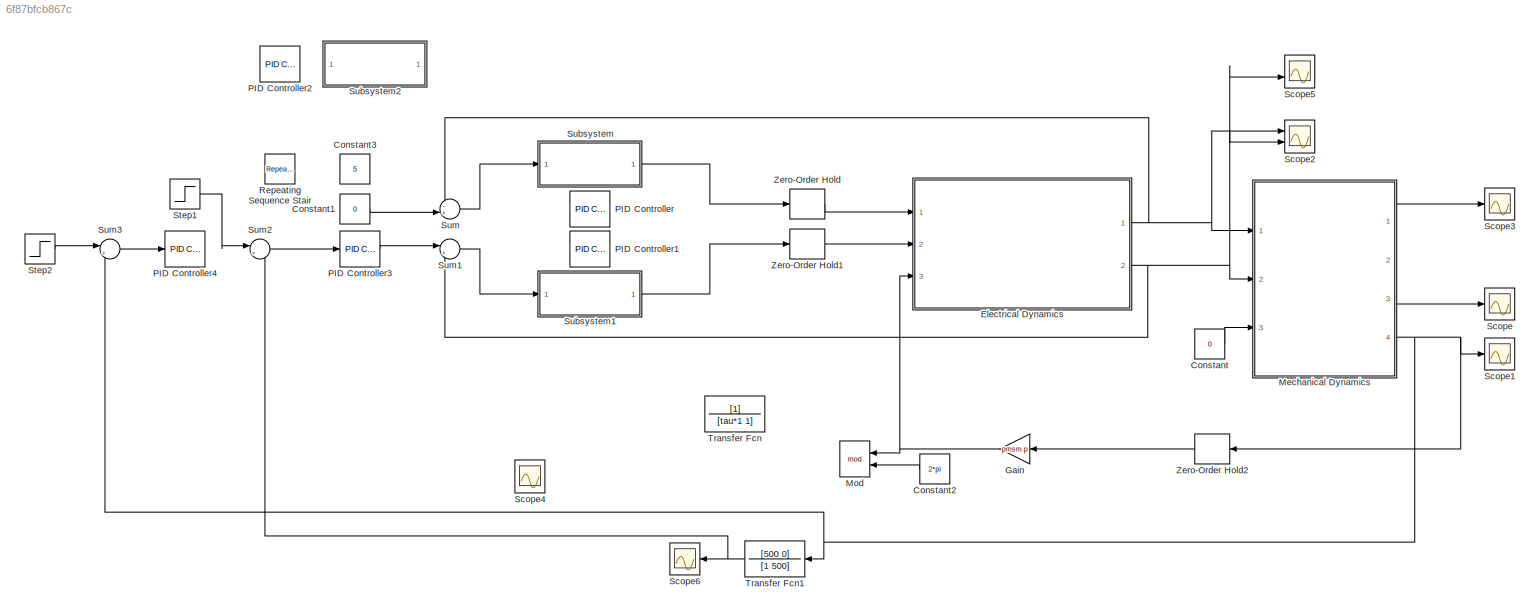
MODEL slx_6f87bfcb867c
KIND model
CONFIG AbsTol = auto
CONFIG EnableMultiTasking = off
CONFIG FixedStep = 1e-5
CONFIG MaxStep = auto
CONFIG MinStep = auto
CONFIG RelTol = 1e-3
CONFIG SampleTimeConstraint = Unconstrained
CONFIG SolverName = VariableStepAuto
CONFIG StartTime = 0.0
CONFIG StopTime = 5
BLOCK [Constant] Constant
  Value = 0
BLOCK [Constant] Constant1
  Value = 0
BLOCK [Constant] Constant2
  NameLocation = top
  Value = 2*pi
BLOCK [Constant] Constant3
  Value = 5
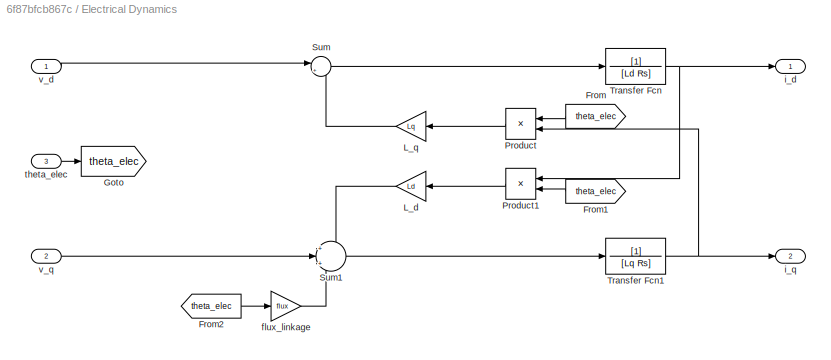
BLOCK [SubSystem] Electrical Dynamics
  Ports = [3, 2]
  RequestExecContextInheritance = off
BLOCK [From] Electrical Dynamics/From
  GotoTag = theta_elec
  NameLocation = top
BLOCK [From] Electrical Dynamics/From1
  GotoTag = theta_elec
  NameLocation = top
BLOCK [From] Electrical Dynamics/From2
  GotoTag = theta_elec
BLOCK [Goto] Electrical Dynamics/Goto
  GotoTag = theta_elec
BLOCK [Gain] Electrical Dynamics/L_d
  Gain = Ld
  NameLocation = top
BLOCK [Gain] Electrical Dynamics/L_q
  Gain = Lq
  NameLocation = top
BLOCK [Product] Electrical Dynamics/Product
  NameLocation = top
  Ports = [2, 1]
BLOCK [Product] Electrical Dynamics/Product1
  NameLocation = top
  Ports = [2, 1]
BLOCK [Sum] Electrical Dynamics/Sum
  Inputs = |+-
  Ports = [2, 1]
BLOCK [Sum] Electrical Dynamics/Sum1
  Inputs = +|+|+
  Ports = [3, 1]
BLOCK [TransferFcn] Electrical Dynamics/Transfer Fcn
  Denominator = [Ld Rs]
BLOCK [TransferFcn] Electrical Dynamics/Transfer Fcn1
  Denominator = [Lq Rs]
BLOCK [Gain] Electrical Dynamics/flux_linkage
  Gain = flux
BLOCK [Outport] Electrical Dynamics/i_d
BLOCK [Outport] Electrical Dynamics/i_q
  Port = 2
BLOCK [Inport] Electrical Dynamics/theta_elec
  Port = 3
BLOCK [Inport] Electrical Dynamics/v_d
BLOCK [Inport] Electrical Dynamics/v_q
  Port = 2
BLOCK [Gain] Gain
  Gain = pmsm.p
  NameLocation = top
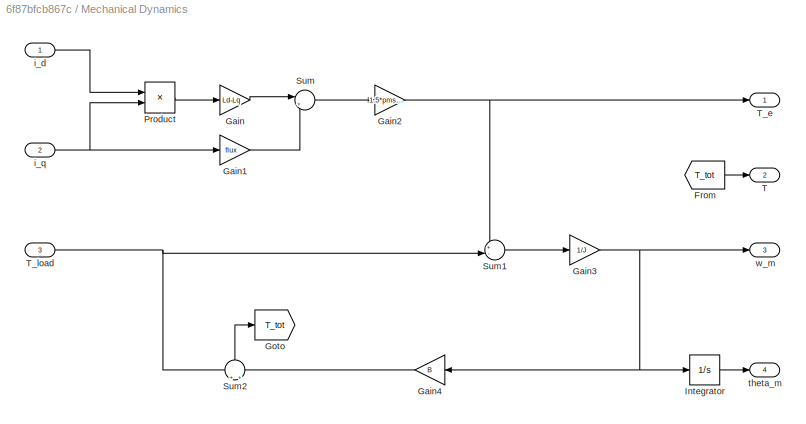
BLOCK [SubSystem] Mechanical Dynamics
  Ports = [3, 4]
  RequestExecContextInheritance = off
BLOCK [From] Mechanical Dynamics/From
  GotoTag = T_tot
BLOCK [Gain] Mechanical Dynamics/Gain
  Gain = Ld-Lq
BLOCK [Gain] Mechanical Dynamics/Gain1
  Gain = flux
BLOCK [Gain] Mechanical Dynamics/Gain2
  Gain = 1.5*pmsm.p
BLOCK [Gain] Mechanical Dynamics/Gain3
  Gain = 1/J
BLOCK [Gain] Mechanical Dynamics/Gain4
  Gain = B
  NameLocation = top
BLOCK [Goto] Mechanical Dynamics/Goto
  GotoTag = T_tot
BLOCK [Integrator] Mechanical Dynamics/Integrator
  Ports = [1, 1]
BLOCK [Product] Mechanical Dynamics/Product
  Ports = [2, 1]
BLOCK [Sum] Mechanical Dynamics/Sum
  Inputs = |++
  Ports = [2, 1]
BLOCK [Sum] Mechanical Dynamics/Sum1
  Inputs = +-|
  Ports = [2, 1]
BLOCK [Sum] Mechanical Dynamics/Sum2
  Inputs = +|+
  NameLocation = right
  Ports = [2, 1]
BLOCK [Outport] Mechanical Dynamics/T
  Port = 2
BLOCK [Outport] Mechanical Dynamics/T_e
BLOCK [Inport] Mechanical Dynamics/T_load
  Port = 3
BLOCK [Inport] Mechanical Dynamics/i_d
BLOCK [Inport] Mechanical Dynamics/i_q
  Port = 2
BLOCK [Outport] Mechanical Dynamics/theta_m
  Port = 4
BLOCK [Outport] Mechanical Dynamics/w_m
  Port = 3
BLOCK [Math] Mod
  NameLocation = top
  Operator = mod
  Ports = [2, 1]
BLOCK [Reference] PID Controller  REF=pid_lib/PID Controller
  Ports = [1, 1]
  SourceBlock = pid_lib/PID Controller
  SourceProductBaseCode = SL
  SourceType = PID 1dof
BLOCK [Reference] PID Controller1  REF=pid_lib/PID Controller
  Ports = [1, 1]
  SourceBlock = pid_lib/PID Controller
  SourceProductBaseCode = SL
  SourceType = PID 1dof
BLOCK [Reference] PID Controller2  REF=pid_lib/PID Controller
  Ports = [1, 1]
  SourceBlock = pid_lib/PID Controller
  SourceProductBaseCode = SL
  SourceType = PID 1dof
BLOCK [Reference] PID Controller3  REF=pid_lib/PID Controller
  Ports = [1, 1]
  SourceBlock = pid_lib/PID Controller
  SourceProductBaseCode = SL
  SourceType = PID 1dof
BLOCK [Reference] PID Controller4  REF=pid_lib/PID Controller
  Ports = [1, 1]
  SourceBlock = pid_lib/PID Controller
  SourceProductBaseCode = SL
  SourceType = PID 1dof
BLOCK [Reference] Repeating Sequence Stair  REF=simulink/Sources/Repeating
Sequence
Stair
  Ports = [0, 1]
  SourceBlock = simulink/Sources/Repeating\nSequence\nStair
  SourceProductBaseCode = SL
  SourceType = Repeating Sequence Stair
BLOCK [Scope] Scope
  Floating = off
  NumInputPorts = 1
  Ports = [1]
  ScopeSpecificationString = Simulink.scopes.TimeScopeBlockCfg('CurrentConfiguration', extmgr.ConfigurationSet(extmgr.Configuration('Core','General UI',true),extmgr.Configuration('Core','Source UI',true),extmgr.Configuration('Sources','WiredSimulink',true),extmgr.Configuration('Visuals','Time Domain',true,'SerializedDisplays',{struct('MinYLimReal','-1.21221','MaxYLimReal','5.21099','YLabelReal','','MinYLimMag','0.00000','MaxY...<+1414ch>
BLOCK [Scope] Scope1
  Floating = off
  NumInputPorts = 1
  Ports = [1]
  ScopeSpecificationString = Simulink.scopes.TimeScopeBlockCfg('CurrentConfiguration', extmgr.ConfigurationSet(extmgr.Configuration('Core','General UI',true),extmgr.Configuration('Core','Source UI',true),extmgr.Configuration('Sources','WiredSimulink',true,'DataLoggingVariableName','ScopeData1'),extmgr.Configuration('Visuals','Time Domain',true,'SerializedDisplays',{struct('MinYLimReal','-0.39636','MaxYLimReal','3.56721','YLab...<+1454ch>
BLOCK [Scope] Scope2
  Floating = off
  NumInputPorts = 2
  Ports = [2]
  ScopeSpecificationString = Simulink.scopes.TimeScopeBlockCfg('CurrentConfiguration', extmgr.ConfigurationSet(extmgr.Configuration('Core','General UI',true),extmgr.Configuration('Core','Source UI',true),extmgr.Configuration('Sources','WiredSimulink',true,'DataLoggingVariableName','ScopeData2'),extmgr.Configuration('Visuals','Time Domain',true,'SerializedDisplays',{struct('MinYLimReal','-0.65977','MaxYLimReal','5.90014','YLab...<+1478ch>
BLOCK [Scope] Scope3
  Floating = off
  NumInputPorts = 1
  Ports = [1]
  ScopeSpecificationString = Simulink.scopes.TimeScopeBlockCfg('CurrentConfiguration', extmgr.ConfigurationSet(extmgr.Configuration('Core','General UI',true),extmgr.Configuration('Core','Source UI',true),extmgr.Configuration('Sources','WiredSimulink',true,'DataLoggingVariableName','ScopeData3'),extmgr.Configuration('Visuals','Time Domain',true,'SerializedDisplays',{struct('MinYLimReal','-0.0015','MaxYLimReal','0.01318','YLabe...<+1422ch>
BLOCK [Scope] Scope4
  Floating = off
  NameLocation = top
  NumInputPorts = 2
  Ports = [2]
  ScopeSpecificationString = Simulink.scopes.TimeScopeBlockCfg('CurrentConfiguration', extmgr.ConfigurationSet(extmgr.Configuration('Core','General UI',true),extmgr.Configuration('Core','Source UI',true),extmgr.Configuration('Sources','WiredSimulink',true,'DataLoggingVariableName','ScopeData1'),extmgr.Configuration('Visuals','Time Domain',true,'SerializedDisplays',{struct('MinYLimReal','-276030131.81209','MaxYLimReal','256292...<+1562ch>
BLOCK [Scope] Scope5
  Floating = off
  NumInputPorts = 2
  Ports = [2]
  ScopeSpecificationString = Simulink.scopes.TimeScopeBlockCfg('CurrentConfiguration', extmgr.ConfigurationSet(extmgr.Configuration('Core','General UI',true),extmgr.Configuration('Core','Source UI',true),extmgr.Configuration('Sources','WiredSimulink',true,'DataLoggingVariableName','ScopeData2'),extmgr.Configuration('Visuals','Time Domain',true,'SerializedDisplays',{struct('MinYLimReal','-0.05463','MaxYLimReal','0.45788','YLab...<+1464ch>
BLOCK [Scope] Scope6
  Floating = off
  NameLocation = top
  NumInputPorts = 1
  Ports = [1]
  ScopeSpecificationString = Simulink.scopes.TimeScopeBlockCfg('CurrentConfiguration', extmgr.ConfigurationSet(extmgr.Configuration('Core','General UI',true),extmgr.Configuration('Core','Source UI',true),extmgr.Configuration('Sources','WiredSimulink',true,'DataLoggingVariableName','ScopeData1'),extmgr.Configuration('Visuals','Time Domain',true,'SerializedDisplays',{struct('MinYLimReal','-1.47187','MaxYLimReal','12.91721','YLa...<+1376ch>
BLOCK [Step] Step1
  SampleTime = 0
  Time = 0.1
BLOCK [Step] Step2
  After = pi
  SampleTime = 0
  Time = 0.1
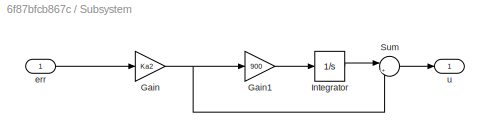
BLOCK [SubSystem] Subsystem
  Ports = [1, 1]
  RequestExecContextInheritance = off
BLOCK [Gain] Subsystem/Gain
  Gain = Ka2
BLOCK [Gain] Subsystem/Gain1
  Gain = 900
BLOCK [Integrator] Subsystem/Integrator
  Ports = [1, 1]
BLOCK [Sum] Subsystem/Sum
  Inputs = |++
  Ports = [2, 1]
BLOCK [Inport] Subsystem/err
BLOCK [Outport] Subsystem/u
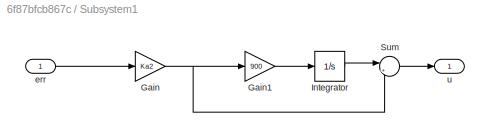
BLOCK [SubSystem] Subsystem1
  Ports = [1, 1]
  RequestExecContextInheritance = off
BLOCK [Gain] Subsystem1/Gain
  Gain = Ka2
BLOCK [Gain] Subsystem1/Gain1
  Gain = 900
BLOCK [Integrator] Subsystem1/Integrator
  Ports = [1, 1]
BLOCK [Sum] Subsystem1/Sum
  Inputs = |++
  Ports = [2, 1]
BLOCK [Inport] Subsystem1/err
BLOCK [Outport] Subsystem1/u
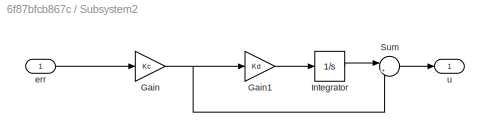
BLOCK [SubSystem] Subsystem2
  Ports = [1, 1]
  RequestExecContextInheritance = off
BLOCK [Gain] Subsystem2/Gain
  Gain = Kc
BLOCK [Gain] Subsystem2/Gain1
  Gain = Kd
BLOCK [Integrator] Subsystem2/Integrator
  Ports = [1, 1]
BLOCK [Sum] Subsystem2/Sum
  Inputs = |++
  Ports = [2, 1]
BLOCK [Inport] Subsystem2/err
BLOCK [Outport] Subsystem2/u
BLOCK [Sum] Sum
  Inputs = -+|
  Ports = [2, 1]
BLOCK [Sum] Sum1
  Inputs = |+-
  Ports = [2, 1]
BLOCK [Sum] Sum2
  Inputs = |+-
  Ports = [2, 1]
BLOCK [Sum] Sum3
  Inputs = |+-
  Ports = [2, 1]
BLOCK [TransferFcn] Transfer Fcn
  Denominator = [tau*1 1]
  NameLocation = top
BLOCK [TransferFcn] Transfer Fcn1
  Denominator = [1 500]
  NameLocation = top
  Numerator = [500 0]
BLOCK [ZeroOrderHold] Zero-Order Hold
  SampleTime = Ts
BLOCK [ZeroOrderHold] Zero-Order Hold1
  SampleTime = Ts
BLOCK [ZeroOrderHold] Zero-Order Hold2
  NameLocation = top
  SampleTime = Ts
LINE Constant1:1 -> Sum:2
LINE Constant2:1 -> Mod:2
LINE Constant:1 -> Mechanical Dynamics:3
LINE Electrical Dynamics/From1:1 -> Electrical Dynamics/Product1:2
LINE Electrical Dynamics/From2:1 -> Electrical Dynamics/flux_linkage:1
LINE Electrical Dynamics/From:1 -> Electrical Dynamics/Product:1
LINE Electrical Dynamics/L_d:1 -> Electrical Dynamics/Sum1:1
LINE Electrical Dynamics/L_q:1 -> Electrical Dynamics/Sum:2
LINE Electrical Dynamics/Product1:1 -> Electrical Dynamics/L_d:1
LINE Electrical Dynamics/Product:1 -> Electrical Dynamics/L_q:1
LINE Electrical Dynamics/Sum1:1 -> Electrical Dynamics/Transfer Fcn1:1
LINE Electrical Dynamics/Sum:1 -> Electrical Dynamics/Transfer Fcn:1
NET Electrical Dynamics/Transfer Fcn1:1 -> Electrical Dynamics/Product:2, Electrical Dynamics/i_q:1
NET Electrical Dynamics/Transfer Fcn:1 -> Electrical Dynamics/Product1:1, Electrical Dynamics/i_d:1
LINE Electrical Dynamics/flux_linkage:1 -> Electrical Dynamics/Sum1:3
LINE Electrical Dynamics/theta_elec:1 -> Electrical Dynamics/Goto:1
LINE Electrical Dynamics/v_d:1 -> Electrical Dynamics/Sum:1
LINE Electrical Dynamics/v_q:1 -> Electrical Dynamics/Sum1:2
NET Electrical Dynamics:1 -> Mechanical Dynamics:1, Scope2:1, Sum:1
NET Electrical Dynamics:2 -> Mechanical Dynamics:2, Scope2:2, Scope5:2, Sum1:2
NET Gain:1 -> Electrical Dynamics:3, Mod:1
LINE Mechanical Dynamics/From:1 -> Mechanical Dynamics/T:1
LINE Mechanical Dynamics/Gain1:1 -> Mechanical Dynamics/Sum:2
NET Mechanical Dynamics/Gain2:1 -> Mechanical Dynamics/Sum1:1, Mechanical Dynamics/T_e:1
NET Mechanical Dynamics/Gain3:1 -> Mechanical Dynamics/Gain4:1, Mechanical Dynamics/Integrator:1, Mechanical Dynamics/w_m:1
LINE Mechanical Dynamics/Gain4:1 -> Mechanical Dynamics/Sum2:2
LINE Mechanical Dynamics/Gain:1 -> Mechanical Dynamics/Sum:1
LINE Mechanical Dynamics/Integrator:1 -> Mechanical Dynamics/theta_m:1
LINE Mechanical Dynamics/Product:1 -> Mechanical Dynamics/Gain:1
LINE Mechanical Dynamics/Sum1:1 -> Mechanical Dynamics/Gain3:1
LINE Mechanical Dynamics/Sum2:1 -> Mechanical Dynamics/Goto:1
LINE Mechanical Dynamics/Sum:1 -> Mechanical Dynamics/Gain2:1
NET Mechanical Dynamics/T_load:1 -> Mechanical Dynamics/Sum1:2, Mechanical Dynamics/Sum2:1
LINE Mechanical Dynamics/i_d:1 -> Mechanical Dynamics/Product:1
NET Mechanical Dynamics/i_q:1 -> Mechanical Dynamics/Gain1:1, Mechanical Dynamics/Product:2
LINE Mechanical Dynamics:1 -> Scope3:1
LINE Mechanical Dynamics:3 -> Scope:1
NET Mechanical Dynamics:4 -> Scope1:1, Sum3:2, Transfer Fcn1:1, Zero-Order Hold2:1
LINE PID Controller3:1 -> Sum1:1
LINE Step1:1 -> Sum2:1
LINE Step2:1 -> Sum3:1
LINE Subsystem/Gain1:1 -> Subsystem/Integrator:1
NET Subsystem/Gain:1 -> Subsystem/Gain1:1, Subsystem/Sum:2
LINE Subsystem/Integrator:1 -> Subsystem/Sum:1
LINE Subsystem/Sum:1 -> Subsystem/u:1
LINE Subsystem/err:1 -> Subsystem/Gain:1
LINE Subsystem1/Gain1:1 -> Subsystem1/Integrator:1
NET Subsystem1/Gain:1 -> Subsystem1/Gain1:1, Subsystem1/Sum:2
LINE Subsystem1/Integrator:1 -> Subsystem1/Sum:1
LINE Subsystem1/Sum:1 -> Subsystem1/u:1
LINE Subsystem1/err:1 -> Subsystem1/Gain:1
LINE Subsystem1:1 -> Zero-Order Hold1:1
LINE Subsystem2/Gain1:1 -> Subsystem2/Integrator:1
NET Subsystem2/Gain:1 -> Subsystem2/Gain1:1, Subsystem2/Sum:2
LINE Subsystem2/Integrator:1 -> Subsystem2/Sum:1
LINE Subsystem2/Sum:1 -> Subsystem2/u:1
LINE Subsystem2/err:1 -> Subsystem2/Gain:1
LINE Subsystem:1 -> Zero-Order Hold:1
LINE Sum1:1 -> Subsystem1:1
LINE Sum2:1 -> PID Controller3:1
LINE Sum3:1 -> PID Controller4:1
LINE Sum:1 -> Subsystem:1
NET Transfer Fcn1:1 -> Scope6:1, Sum2:2
LINE Zero-Order Hold1:1 -> Electrical Dynamics:2
LINE Zero-Order Hold2:1 -> Gain:1
LINE Zero-Order Hold:1 -> Electrical Dynamics:1
note: NET lines group one-source signal fan-out (src -> all destinations, sorted); 1:1 wires keep LINE
